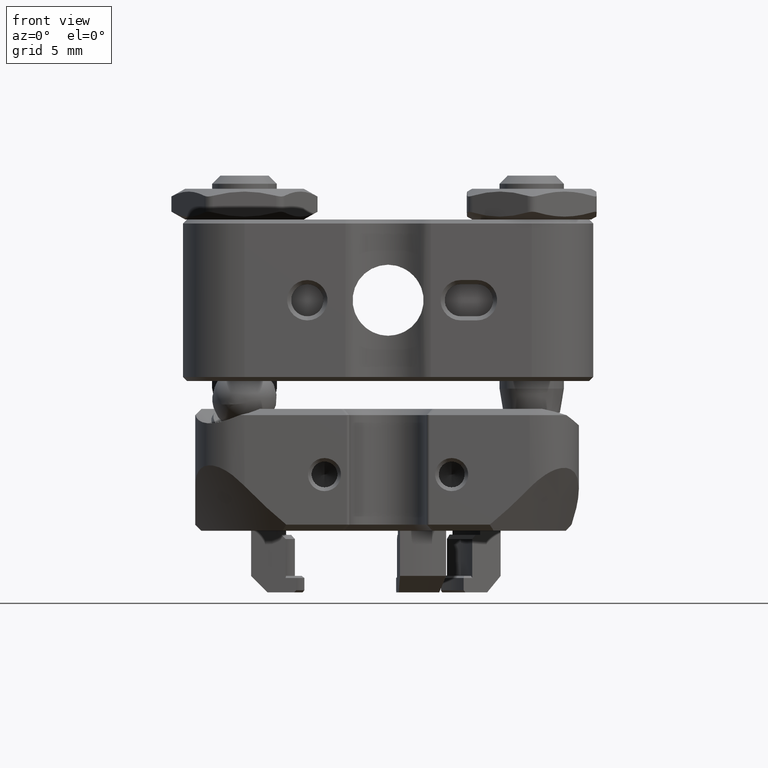
[diagram: clean part render]
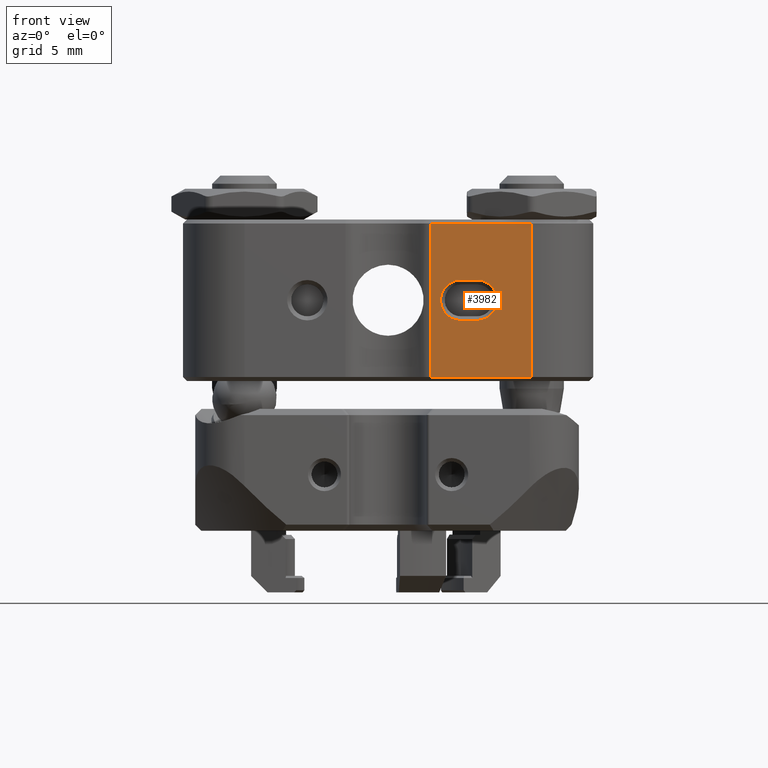
[diagram: same view with one face highlighted and labeled with its STEP entity id]
A machine part, front view. The second image highlights one B-rep face of the part: STEP entity #3982.
In plain terms, the highlighted planar face has unit normal (0, 1, -0).
Its self-contained STEP definition (entity closure, byte-faithful):
#67 = DIRECTION ( 'NONE',  ( -2.168404344971008868E-16, -1.000000000000000000, -1.365923996832131609E-16 ) ) ;
#761 = ORIENTED_EDGE ( 'NONE', *, *, #15762, .T. ) ;
#1006 = EDGE_CURVE ( 'NONE', #13012, #5275, #6137, .T. ) ;
#1224 = LINE ( 'NONE', #6095, #11780 ) ;
#1674 = VERTEX_POINT ( 'NONE', #9395 ) ;
#2026 = CARTESIAN_POINT ( 'NONE',  ( 5.000000000000000000, 12.69999999999999574, -12.69999999999999574 ) ) ;
#2410 = EDGE_CURVE ( 'NONE', #1674, #9295, #1224, .T. ) ;
#2509 = ORIENTED_EDGE ( 'NONE', *, *, #10403, .T. ) ;
#3101 = AXIS2_PLACEMENT_3D ( 'NONE', #14413, #14646, #8535 ) ;
#3234 = AXIS2_PLACEMENT_3D ( 'NONE', #2026, #10778, #13263 ) ;
#3236 = FACE_BOUND ( 'NONE', #11024, .T. ) ;
#3364 = CARTESIAN_POINT ( 'NONE',  ( 4.749999999999992895, 2.645751311064587163, -12.69999999999999751 ) ) ;
#3929 = CARTESIAN_POINT ( 'NONE',  ( -1.249999999999997780, 4.500000000000002665, -12.69999999999999751 ) ) ;
#3982 = ADVANCED_FACE ( 'NONE', ( #3236, #5862 ), #10707, .F. ) ;
#4062 = VERTEX_POINT ( 'NONE', #14789 ) ;
#4063 = ORIENTED_EDGE ( 'NONE', *, *, #13525, .T. ) ;
#4616 = DIRECTION ( 'NONE',  ( 0.000000000000000000, -1.365923996832131609E-16, 1.000000000000000000 ) ) ;
#4886 = ORIENTED_EDGE ( 'NONE', *, *, #12574, .T. ) ;
#5112 = CARTESIAN_POINT ( 'NONE',  ( 4.749999999999992895, 2.645751311064587163, -12.69999999999999751 ) ) ;
#5275 = VERTEX_POINT ( 'NONE', #3929 ) ;
#5355 = CARTESIAN_POINT ( 'NONE',  ( 5.000000000000000000, 8.889999999999995239, -12.69999999999999574 ) ) ;
#5691 = AXIS2_PLACEMENT_3D ( 'NONE', #15628, #4616, #9517 ) ;
#5862 = FACE_OUTER_BOUND ( 'NONE', #6983, .T. ) ;
#6095 = CARTESIAN_POINT ( 'NONE',  ( -4.749999999999996447, 12.69999999999999574, -12.69999999999999574 ) ) ;
#6137 = LINE ( 'NONE', #11050, #11860 ) ;
#6182 = EDGE_CURVE ( 'NONE', #9295, #13719, #14903, .T. ) ;
#6687 = CIRCLE ( 'NONE', #3101, 1.249999999999999334 ) ;
#6983 = EDGE_LOOP ( 'NONE', ( #761, #8569, #8118, #4063 ) ) ;
#7463 = CARTESIAN_POINT ( 'NONE',  ( 5.000000000000000000, 2.645751311064587163, -12.69999999999999751 ) ) ;
#7752 = VECTOR ( 'NONE', #15746, 1000.000000000000000 ) ;
#7788 = DIRECTION ( 'NONE',  ( -1.000000000000000000, -0.000000000000000000, -0.000000000000000000 ) ) ;
#8112 = CARTESIAN_POINT ( 'NONE',  ( -4.749999999999996447, 8.889999999999995239, -12.69999999999999574 ) ) ;
#8118 = ORIENTED_EDGE ( 'NONE', *, *, #6182, .T. ) ;
#8171 = EDGE_CURVE ( 'NONE', #10583, #4062, #9552, .T. ) ;
#8535 = DIRECTION ( 'NONE',  ( 0.000000000000000000, -1.000000000000000000, 0.000000000000000000 ) ) ;
#8569 = ORIENTED_EDGE ( 'NONE', *, *, #2410, .T. ) ;
#9295 = VERTEX_POINT ( 'NONE', #8112 ) ;
#9395 = CARTESIAN_POINT ( 'NONE',  ( -4.749999999999996447, 2.645751311064587163, -12.69999999999999751 ) ) ;
#9517 = DIRECTION ( 'NONE',  ( 0.000000000000000000, -1.000000000000000000, 0.000000000000000000 ) ) ;
#9552 = LINE ( 'NONE', #14451, #7752 ) ;
#10403 = EDGE_CURVE ( 'NONE', #4062, #13012, #6687, .T. ) ;
#10583 = VERTEX_POINT ( 'NONE', #15457 ) ;
#10707 = PLANE ( 'NONE',  #3234 ) ;
#10778 = DIRECTION ( 'NONE',  ( 0.000000000000000000, -1.365923996832131609E-16, 1.000000000000000000 ) ) ;
#11024 = EDGE_LOOP ( 'NONE', ( #14090, #4886, #14956, #2509 ) ) ;
#11050 = CARTESIAN_POINT ( 'NONE',  ( -1.249999999999996003, 12.69999999999999751, -12.69999999999999574 ) ) ;
#11059 = DIRECTION ( 'NONE',  ( 0.000000000000000000, -1.000000000000000000, -1.365923996832131609E-16 ) ) ;
#11327 = LINE ( 'NONE', #7463, #13662 ) ;
#11780 = VECTOR ( 'NONE', #14555, 1000.000000000000000 ) ;
#11860 = VECTOR ( 'NONE', #67, 1000.000000000000000 ) ;
#11932 = VECTOR ( 'NONE', #13942, 1000.000000000000000 ) ;
#12093 = CARTESIAN_POINT ( 'NONE',  ( 4.749999999999992895, 8.889999999999995239, -12.69999999999999574 ) ) ;
#12101 = CIRCLE ( 'NONE', #5691, 1.249999999999997113 ) ;
#12574 = EDGE_CURVE ( 'NONE', #5275, #10583, #12101, .T. ) ;
#12633 = VECTOR ( 'NONE', #11059, 1000.000000000000000 ) ;
#13012 = VERTEX_POINT ( 'NONE', #13347 ) ;
#13263 = DIRECTION ( 'NONE',  ( 0.000000000000000000, -1.000000000000000000, -1.365923996832131609E-16 ) ) ;
#13347 = CARTESIAN_POINT ( 'NONE',  ( -1.249999999999998890, 5.500000000000002665, -12.69999999999999751 ) ) ;
#13525 = EDGE_CURVE ( 'NONE', #13719, #14987, #13549, .T. ) ;
#13549 = LINE ( 'NONE', #5112, #12633 ) ;
#13662 = VECTOR ( 'NONE', #7788, 1000.000000000000000 ) ;
#13719 = VERTEX_POINT ( 'NONE', #12093 ) ;
#13942 = DIRECTION ( 'NONE',  ( 1.000000000000000000, -0.000000000000000000, -0.000000000000000000 ) ) ;
#14090 = ORIENTED_EDGE ( 'NONE', *, *, #1006, .T. ) ;
#14413 = CARTESIAN_POINT ( 'NONE',  ( 6.998123026093775176E-17, 5.500000000000001776, -12.69999999999999751 ) ) ;
#14451 = CARTESIAN_POINT ( 'NONE',  ( 1.249999999999999334, 12.69999999999999574, -12.69999999999999574 ) ) ;
#14555 = DIRECTION ( 'NONE',  ( 0.000000000000000000, 1.000000000000000000, 1.365923996832131609E-16 ) ) ;
#14646 = DIRECTION ( 'NONE',  ( 0.000000000000000000, -1.365923996832131609E-16, 1.000000000000000000 ) ) ;
#14789 = CARTESIAN_POINT ( 'NONE',  ( 1.249999999999998890, 5.500000000000000888, -12.69999999999999751 ) ) ;
#14903 = LINE ( 'NONE', #5355, #11932 ) ;
#14956 = ORIENTED_EDGE ( 'NONE', *, *, #8171, .T. ) ;
#14987 = VERTEX_POINT ( 'NONE', #3364 ) ;
#15457 = CARTESIAN_POINT ( 'NONE',  ( 1.249999999999997558, 4.500000000000002665, -12.69999999999999751 ) ) ;
#15628 = CARTESIAN_POINT ( 'NONE',  ( -2.361804695259002542E-16, 4.500000000000002665, -12.69999999999999751 ) ) ;
#15746 = DIRECTION ( 'NONE',  ( 2.168404344971012812E-16, 1.000000000000000000, 1.365923996832131609E-16 ) ) ;
#15762 = EDGE_CURVE ( 'NONE', #14987, #1674, #11327, .T. ) ;